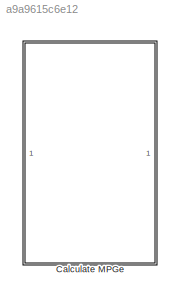
MODEL slx_a9a9615c6e12
KIND library
CONFIG AbsTol = auto
CONFIG EnableMultiTasking = off
CONFIG FixedStep = auto
CONFIG MaxStep = auto
CONFIG MinStep = auto
CONFIG RelTol = 1e-3
CONFIG SampleTimeConstraint = Unconstrained
CONFIG Solver = VariableStepAuto
CONFIG SolverName = VariableStepAuto
CONFIG StartTime = 0.0
CONFIG StopTime = 10.0
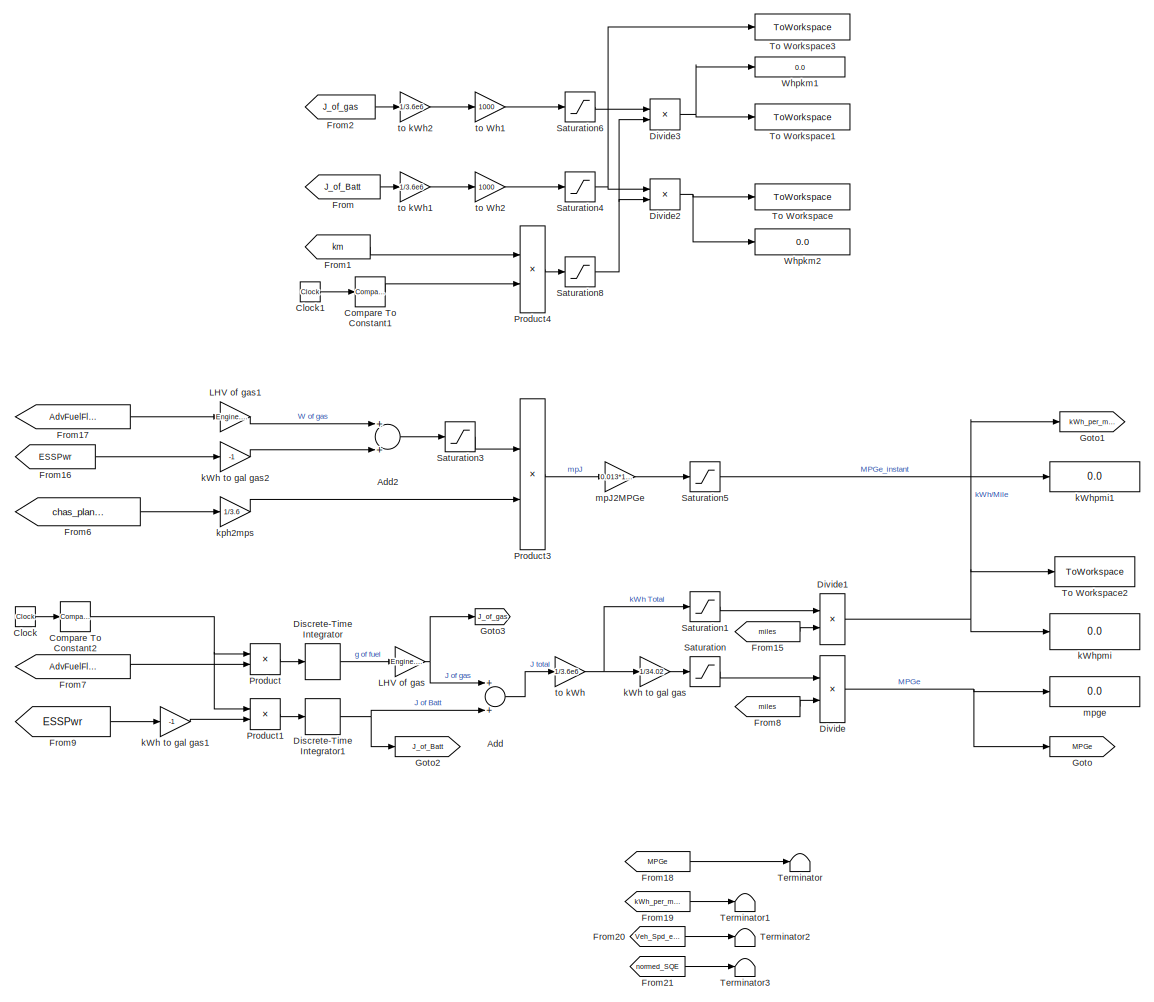
[diagram: Calculate MPGe - part 1/2, left side, full height]
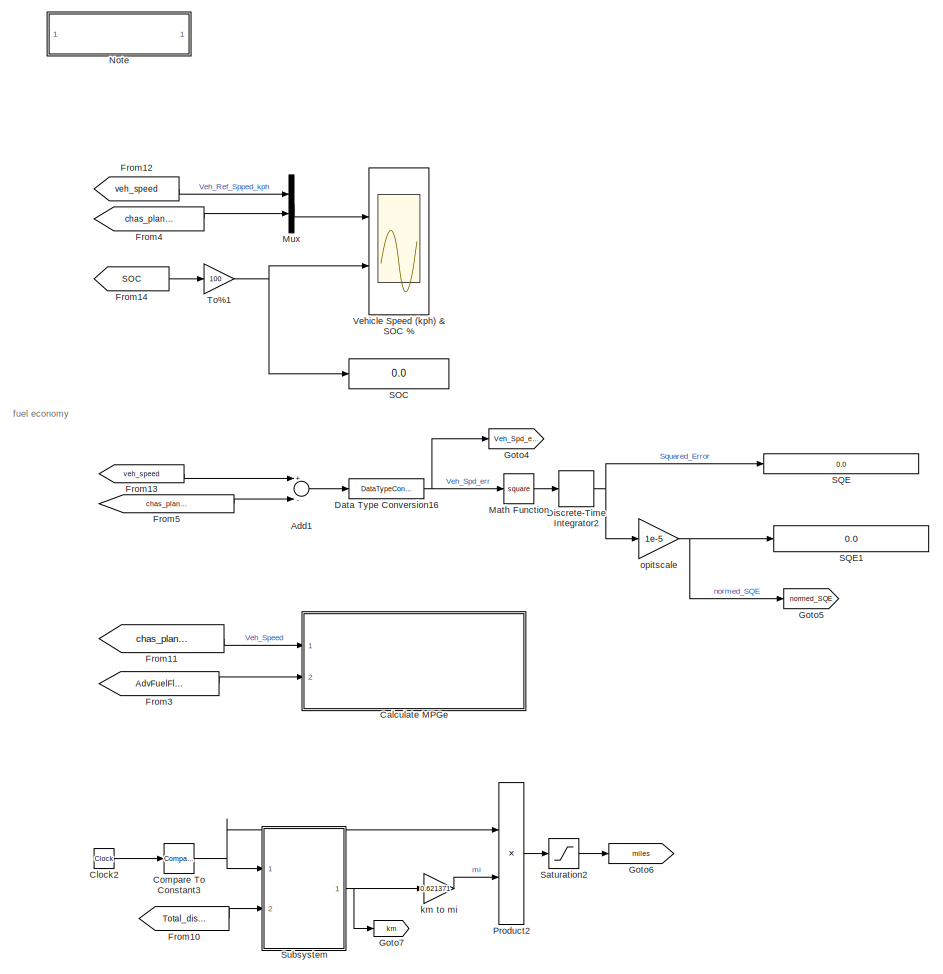
[diagram: Calculate MPGe - part 2/2, right side, full height]
BLOCK [SubSystem] Calculate MPGe
  Ports = []
  RequestExecContextInheritance = off
  Variant = off
BLOCK [Sum] Calculate MPGe/Add
  InputSameDT = off
  OutDataTypeStr = Inherit: Inherit via internal rule
  Ports = [2, 1]
  SaturateOnIntegerOverflow = off
BLOCK [Sum] Calculate MPGe/Add1
  InputSameDT = off
  Inputs = +-
  OutDataTypeStr = Inherit: Inherit via internal rule
  Ports = [2, 1]
  SaturateOnIntegerOverflow = off
BLOCK [Sum] Calculate MPGe/Add2
  InputSameDT = off
  OutDataTypeStr = Inherit: Inherit via internal rule
  Ports = [2, 1]
  SaturateOnIntegerOverflow = off
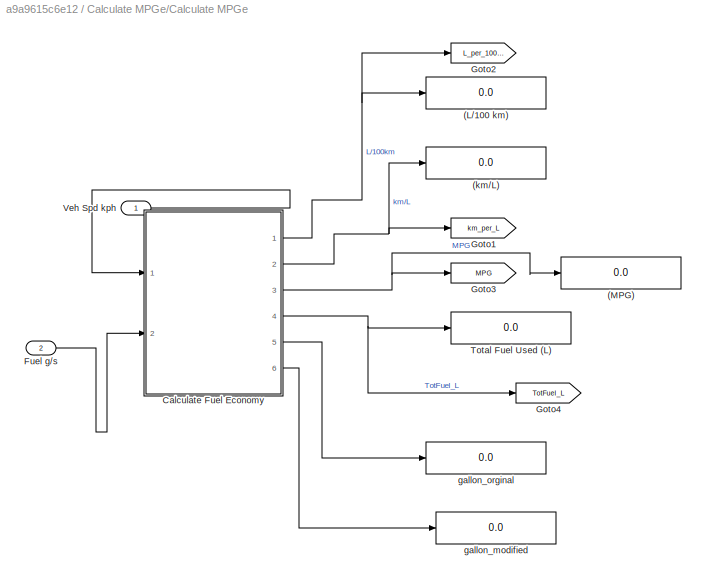
BLOCK [SubSystem] Calculate MPGe/Calculate MPGe
  Ports = [2]
  RequestExecContextInheritance = off
  Variant = off
BLOCK [Display] Calculate MPGe/Calculate MPGe/(L//100 km)
  Decimation = 1
  Ports = [1]
BLOCK [Display] Calculate MPGe/Calculate MPGe/(MPG)
  Decimation = 1
  Ports = [1]
BLOCK [Display] Calculate MPGe/Calculate MPGe/(km//L)
  Decimation = 1
  Ports = [1]
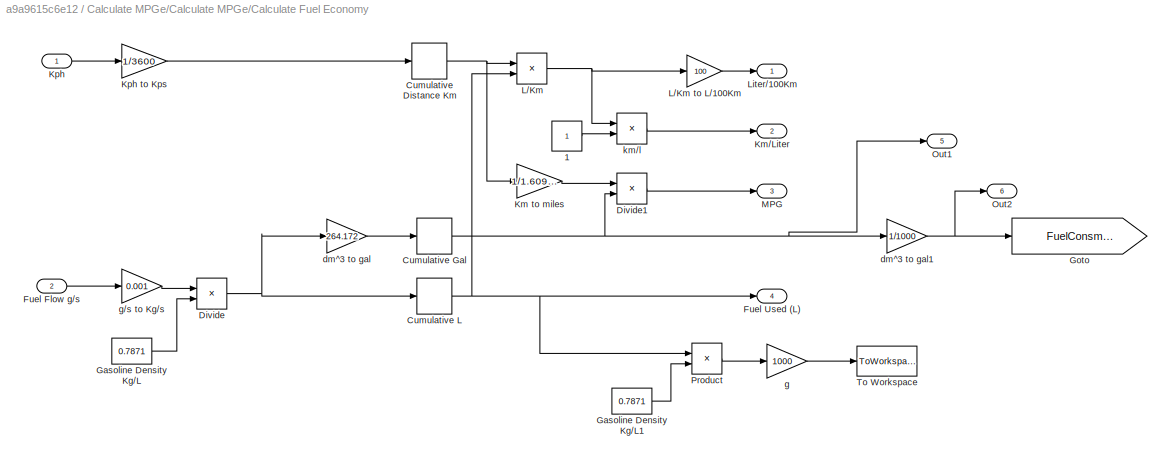
BLOCK [SubSystem] Calculate MPGe/Calculate MPGe/Calculate Fuel Economy
  Ports = [2, 6]
  RequestExecContextInheritance = off
  Variant = off
BLOCK [Constant] Calculate MPGe/Calculate MPGe/Calculate Fuel Economy/1
BLOCK [DiscreteIntegrator] Calculate MPGe/Calculate MPGe/Calculate Fuel Economy/Cumulative Distance Km
  ICPrevOutput = DiscIntNeverNeededParam
  ICPrevScaledInput = DiscIntNeverNeededParam
  InitialCondition = eps
  Ports = [1, 1]
  SampleTime = -1
BLOCK [DiscreteIntegrator] Calculate MPGe/Calculate MPGe/Calculate Fuel Economy/Cumulative Gal
  ICPrevOutput = DiscIntNeverNeededParam
  ICPrevScaledInput = DiscIntNeverNeededParam
  InitialCondition = eps
  Ports = [1, 1]
  SampleTime = -1
BLOCK [DiscreteIntegrator] Calculate MPGe/Calculate MPGe/Calculate Fuel Economy/Cumulative L
  ICPrevOutput = DiscIntNeverNeededParam
  ICPrevScaledInput = DiscIntNeverNeededParam
  InitialCondition = eps
  Ports = [1, 1]
  SampleTime = -1
BLOCK [Product] Calculate MPGe/Calculate MPGe/Calculate Fuel Economy/Divide
  InputSameDT = off
  Inputs = */
  OutDataTypeStr = Inherit: Inherit via internal rule
  Ports = [2, 1]
  RndMeth = Floor
  SaturateOnIntegerOverflow = off
BLOCK [Product] Calculate MPGe/Calculate MPGe/Calculate Fuel Economy/Divide1
  InputSameDT = off
  Inputs = */
  OutDataTypeStr = Inherit: Inherit via internal rule
  Ports = [2, 1]
  RndMeth = Floor
  SaturateOnIntegerOverflow = off
BLOCK [Inport] Calculate MPGe/Calculate MPGe/Calculate Fuel Economy/Fuel Flow g//s
  IconDisplay = Port number
  Port = 2
BLOCK [Outport] Calculate MPGe/Calculate MPGe/Calculate Fuel Economy/Fuel Used (L)
  IconDisplay = Port number
  Port = 4
BLOCK [Constant] Calculate MPGe/Calculate MPGe/Calculate Fuel Economy/Gasoline Density Kg//L
  Value = 0.7871
BLOCK [Constant] Calculate MPGe/Calculate MPGe/Calculate Fuel Economy/Gasoline Density Kg//L1
  Value = 0.7871
BLOCK [Goto] Calculate MPGe/Calculate MPGe/Calculate Fuel Economy/Goto
  GotoTag = FuelConsmp_gal
  TagVisibility = global
BLOCK [Gain] Calculate MPGe/Calculate MPGe/Calculate Fuel Economy/Km to miles
  Gain = 1/1.609344
  OutDataTypeStr = Inherit: Inherit via internal rule
  ParamDataTypeStr = Inherit: Inherit via internal rule
  SaturateOnIntegerOverflow = off
BLOCK [Outport] Calculate MPGe/Calculate MPGe/Calculate Fuel Economy/Km//Liter
  IconDisplay = Port number
  Port = 2
BLOCK [Inport] Calculate MPGe/Calculate MPGe/Calculate Fuel Economy/Kph
  IconDisplay = Port number
BLOCK [Gain] Calculate MPGe/Calculate MPGe/Calculate Fuel Economy/Kph to Kps
  Gain = 1/3600
  OutDataTypeStr = Inherit: Inherit via internal rule
  ParamDataTypeStr = Inherit: Inherit via internal rule
  SaturateOnIntegerOverflow = off
BLOCK [Product] Calculate MPGe/Calculate MPGe/Calculate Fuel Economy/L//Km
  InputSameDT = off
  Inputs = /*
  OutDataTypeStr = Inherit: Inherit via internal rule
  Ports = [2, 1]
  RndMeth = Floor
  SaturateOnIntegerOverflow = off
BLOCK [Gain] Calculate MPGe/Calculate MPGe/Calculate Fuel Economy/L//Km to L//100Km
  Gain = 100
  OutDataTypeStr = Inherit: Inherit via internal rule
  ParamDataTypeStr = Inherit: Inherit via internal rule
  SaturateOnIntegerOverflow = off
BLOCK [Outport] Calculate MPGe/Calculate MPGe/Calculate Fuel Economy/Liter//100Km
  IconDisplay = Port number
BLOCK [Outport] Calculate MPGe/Calculate MPGe/Calculate Fuel Economy/MPG
  IconDisplay = Port number
  Port = 3
BLOCK [Outport] Calculate MPGe/Calculate MPGe/Calculate Fuel Economy/Out1
  IconDisplay = Port number
  Port = 5
BLOCK [Outport] Calculate MPGe/Calculate MPGe/Calculate Fuel Economy/Out2
  IconDisplay = Port number
  Port = 6
BLOCK [Product] Calculate MPGe/Calculate MPGe/Calculate Fuel Economy/Product
  InputSameDT = off
  OutDataTypeStr = Inherit: Inherit via internal rule
  Ports = [2, 1]
  RndMeth = Floor
  SaturateOnIntegerOverflow = off
BLOCK [ToWorkspace] Calculate MPGe/Calculate MPGe/Calculate Fuel Economy/To Workspace
  FixptAsFi = on
  MaxDataPoints = inf
  Ports = [1]
  SampleTime = -1
  Save2DSignal = 3-D array (concatenate along third dimension)
  VariableName = Fuel_mass
BLOCK [Gain] Calculate MPGe/Calculate MPGe/Calculate Fuel Economy/dm^3 to gal
  Gain = 264.172
  OutDataTypeStr = Inherit: Inherit via internal rule
  ParamDataTypeStr = Inherit: Inherit via internal rule
  SaturateOnIntegerOverflow = off
BLOCK [Gain] Calculate MPGe/Calculate MPGe/Calculate Fuel Economy/dm^3 to gal1
  Gain = 1/1000
  OutDataTypeStr = Inherit: Inherit via internal rule
  ParamDataTypeStr = Inherit: Inherit via internal rule
  SaturateOnIntegerOverflow = off
BLOCK [Gain] Calculate MPGe/Calculate MPGe/Calculate Fuel Economy/g
  Gain = 1000
  OutDataTypeStr = Inherit: Inherit via internal rule
  ParamDataTypeStr = Inherit: Inherit via internal rule
  SaturateOnIntegerOverflow = off
BLOCK [Gain] Calculate MPGe/Calculate MPGe/Calculate Fuel Economy/g//s to Kg//s
  Gain = 0.001
  OutDataTypeStr = Inherit: Inherit via internal rule
  ParamDataTypeStr = Inherit: Inherit via internal rule
  SaturateOnIntegerOverflow = off
BLOCK [Product] Calculate MPGe/Calculate MPGe/Calculate Fuel Economy/km//l
  InputSameDT = off
  Inputs = /*
  OutDataTypeStr = Inherit: Inherit via internal rule
  Ports = [2, 1]
  RndMeth = Floor
  SaturateOnIntegerOverflow = off
BLOCK [Inport] Calculate MPGe/Calculate MPGe/Fuel g//s
  IconDisplay = Port number
  Port = 2
BLOCK [Goto] Calculate MPGe/Calculate MPGe/Goto1
  Commented = on
  GotoTag = km_per_L
  TagVisibility = global
BLOCK [Goto] Calculate MPGe/Calculate MPGe/Goto2
  Commented = on
  GotoTag = L_per_100km
  TagVisibility = global
BLOCK [Goto] Calculate MPGe/Calculate MPGe/Goto3
  Commented = on
  GotoTag = MPG
  TagVisibility = global
BLOCK [Goto] Calculate MPGe/Calculate MPGe/Goto4
  Commented = on
  GotoTag = TotFuel_L
  TagVisibility = global
BLOCK [Display] Calculate MPGe/Calculate MPGe/Total Fuel Used (L)
  Decimation = 1
  Ports = [1]
BLOCK [Inport] Calculate MPGe/Calculate MPGe/Veh Spd kph
  IconDisplay = Port number
BLOCK [Display] Calculate MPGe/Calculate MPGe/gallon_modified
  Decimation = 1
  Ports = [1]
BLOCK [Display] Calculate MPGe/Calculate MPGe/gallon_orginal
  Decimation = 1
  Ports = [1]
BLOCK [Clock] Calculate MPGe/Clock
BLOCK [Clock] Calculate MPGe/Clock1
BLOCK [Clock] Calculate MPGe/Clock2
BLOCK [Reference] Calculate MPGe/Compare To Constant1  REF=simulink/Logic and Bit
Operations/Compare
To Constant
  Ports = [1, 1]
  SourceBlock = simulink/Logic and Bit\nOperations/Compare\nTo Constant
  SourceProductBaseCode = SL
  SourceProductName = Simulink
  SourceType = Compare To Constant
BLOCK [Reference] Calculate MPGe/Compare To Constant2  REF=simulink/Logic and Bit
Operations/Compare
To Constant
  Ports = [1, 1]
  SourceBlock = simulink/Logic and Bit\nOperations/Compare\nTo Constant
  SourceProductBaseCode = SL
  SourceProductName = Simulink
  SourceType = Compare To Constant
BLOCK [Reference] Calculate MPGe/Compare To Constant3  REF=simulink/Logic and Bit
Operations/Compare
To Constant
  Ports = [1, 1]
  SourceBlock = simulink/Logic and Bit\nOperations/Compare\nTo Constant
  SourceProductBaseCode = SL
  SourceProductName = Simulink
  SourceType = Compare To Constant
BLOCK [DataTypeConversion] Calculate MPGe/Data Type Conversion16
  OutDataTypeStr = double
  RndMeth = Floor
  SaturateOnIntegerOverflow = off
BLOCK [DiscreteIntegrator] Calculate MPGe/Discrete-Time Integrator
  ICPrevOutput = DiscIntNeverNeededParam
  ICPrevScaledInput = DiscIntNeverNeededParam
  Ports = [1, 1]
  SampleTime = -1
BLOCK [DiscreteIntegrator] Calculate MPGe/Discrete-Time Integrator1
  ICPrevOutput = DiscIntNeverNeededParam
  ICPrevScaledInput = DiscIntNeverNeededParam
  Ports = [1, 1]
  SampleTime = -1
BLOCK [DiscreteIntegrator] Calculate MPGe/Discrete-Time Integrator2
  ICPrevOutput = DiscIntNeverNeededParam
  ICPrevScaledInput = DiscIntNeverNeededParam
  Ports = [1, 1]
  SampleTime = -1
BLOCK [Product] Calculate MPGe/Divide
  InputSameDT = off
  Inputs = /*
  OutDataTypeStr = Inherit: Inherit via internal rule
  Ports = [2, 1]
  RndMeth = Floor
  SaturateOnIntegerOverflow = off
BLOCK [Product] Calculate MPGe/Divide1
  InputSameDT = off
  Inputs = */
  OutDataTypeStr = Inherit: Inherit via internal rule
  Ports = [2, 1]
  RndMeth = Floor
  SaturateOnIntegerOverflow = off
BLOCK [Product] Calculate MPGe/Divide2
  InputSameDT = off
  Inputs = */
  OutDataTypeStr = Inherit: Inherit via internal rule
  Ports = [2, 1]
  RndMeth = Floor
  SaturateOnIntegerOverflow = off
BLOCK [Product] Calculate MPGe/Divide3
  InputSameDT = off
  Inputs = */
  OutDataTypeStr = Inherit: Inherit via internal rule
  Ports = [2, 1]
  RndMeth = Floor
  SaturateOnIntegerOverflow = off
BLOCK [From] Calculate MPGe/From
  GotoTag = J_of_Batt
BLOCK [From] Calculate MPGe/From1
  GotoTag = km
BLOCK [From] Calculate MPGe/From10
  GotoTag = Total_dis_km
  TagVisibility = global
BLOCK [From] Calculate MPGe/From11
  GotoTag = chas_plant_lin_spd_out
  TagVisibility = global
BLOCK [From] Calculate MPGe/From12
  GotoTag = veh_speed
  TagVisibility = global
BLOCK [From] Calculate MPGe/From13
  GotoTag = veh_speed
  TagVisibility = global
BLOCK [From] Calculate MPGe/From14
  GotoTag = SOC
  TagVisibility = global
BLOCK [From] Calculate MPGe/From15
  GotoTag = miles
BLOCK [From] Calculate MPGe/From16
  GotoTag = ESSPwr
  TagVisibility = global
BLOCK [From] Calculate MPGe/From17
  GotoTag = AdvFuelFlowEst
  TagVisibility = global
BLOCK [From] Calculate MPGe/From18
  GotoTag = MPGe
  TagVisibility = global
BLOCK [From] Calculate MPGe/From19
  GotoTag = kWh_per_mile
  TagVisibility = global
BLOCK [From] Calculate MPGe/From2
  GotoTag = J_of_gas
BLOCK [From] Calculate MPGe/From20
  GotoTag = Veh_Spd_err
  TagVisibility = global
BLOCK [From] Calculate MPGe/From21
  GotoTag = normed_SQE
  TagVisibility = global
BLOCK [From] Calculate MPGe/From3
  GotoTag = AdvFuelFlowEst
  TagVisibility = global
BLOCK [From] Calculate MPGe/From4
  GotoTag = chas_plant_lin_spd_out
  TagVisibility = global
BLOCK [From] Calculate MPGe/From5
  GotoTag = chas_plant_lin_spd_out
  TagVisibility = global
BLOCK [From] Calculate MPGe/From6
  GotoTag = chas_plant_lin_spd_out
  TagVisibility = global
BLOCK [From] Calculate MPGe/From7
  GotoTag = AdvFuelFlowEst
  TagVisibility = global
BLOCK [From] Calculate MPGe/From8
  GotoTag = miles
BLOCK [From] Calculate MPGe/From9
  GotoTag = ESSPwr
  TagVisibility = global
BLOCK [Goto] Calculate MPGe/Goto
  GotoTag = MPGe
  TagVisibility = global
BLOCK [Goto] Calculate MPGe/Goto1
  GotoTag = kWh_per_mile
  TagVisibility = global
BLOCK [Goto] Calculate MPGe/Goto2
  GotoTag = J_of_Batt
BLOCK [Goto] Calculate MPGe/Goto3
  GotoTag = J_of_gas
BLOCK [Goto] Calculate MPGe/Goto4
  GotoTag = Veh_Spd_err
  TagVisibility = global
BLOCK [Goto] Calculate MPGe/Goto5
  GotoTag = normed_SQE
  TagVisibility = global
BLOCK [Goto] Calculate MPGe/Goto6
  GotoTag = miles
BLOCK [Goto] Calculate MPGe/Goto7
  GotoTag = km
BLOCK [Gain] Calculate MPGe/LHV of gas
  Gain = Engine.Fuel.Lower_Heating_Value/1000
  OutDataTypeStr = Inherit: Inherit via internal rule
  ParamDataTypeStr = Inherit: Inherit via internal rule
  SaturateOnIntegerOverflow = off
BLOCK [Gain] Calculate MPGe/LHV of gas1
  Gain = Engine.Fuel.Lower_Heating_Value/1000
  OutDataTypeStr = Inherit: Inherit via internal rule
  ParamDataTypeStr = Inherit: Inherit via internal rule
  SaturateOnIntegerOverflow = off
BLOCK [Math] Calculate MPGe/Math Function
  Operator = square
  Ports = [1, 1]
BLOCK [Mux] Calculate MPGe/Mux
  DisplayOption = bar
  Inputs = 2
  Ports = [2, 1]
BLOCK [SubSystem] Calculate MPGe/Note
  Ports = []
  RequestExecContextInheritance = off
  Variant = off
BLOCK [Product] Calculate MPGe/Product
  InputSameDT = off
  OutDataTypeStr = Inherit: Inherit via internal rule
  Ports = [2, 1]
  RndMeth = Floor
  SaturateOnIntegerOverflow = off
BLOCK [Product] Calculate MPGe/Product1
  InputSameDT = off
  OutDataTypeStr = Inherit: Inherit via internal rule
  Ports = [2, 1]
  RndMeth = Floor
  SaturateOnIntegerOverflow = off
BLOCK [Product] Calculate MPGe/Product2
  InputSameDT = off
  OutDataTypeStr = Inherit: Inherit via internal rule
  Ports = [2, 1]
  RndMeth = Floor
  SaturateOnIntegerOverflow = off
BLOCK [Product] Calculate MPGe/Product3
  InputSameDT = off
  Inputs = /*
  OutDataTypeStr = Inherit: Inherit via internal rule
  Ports = [2, 1]
  RndMeth = Floor
  SaturateOnIntegerOverflow = off
BLOCK [Product] Calculate MPGe/Product4
  InputSameDT = off
  OutDataTypeStr = Inherit: Inherit via internal rule
  Ports = [2, 1]
  RndMeth = Floor
  SaturateOnIntegerOverflow = off
BLOCK [Display] Calculate MPGe/SOC
  Decimation = 1
  Format = long
  Ports = [1]
BLOCK [Display] Calculate MPGe/SQE
  Decimation = 1
  Ports = [1]
BLOCK [Display] Calculate MPGe/SQE1
  Decimation = 1
  Format = long
  Ports = [1]
BLOCK [Saturate] Calculate MPGe/Saturation
  InputPortMap = u0
  LowerLimit = 1e-6
  Ports = [1, 1]
  UpperLimit = inf
BLOCK [Saturate] Calculate MPGe/Saturation1
  InputPortMap = u0
  LowerLimit = 1e-6
  Ports = [1, 1]
  UpperLimit = inf
BLOCK [Saturate] Calculate MPGe/Saturation2
  InputPortMap = u0
  LowerLimit = 1e-6
  Ports = [1, 1]
  UpperLimit = inf
BLOCK [Saturate] Calculate MPGe/Saturation3
  InputPortMap = u0
  LowerLimit = 1e-6
  Ports = [1, 1]
  UpperLimit = inf
BLOCK [Saturate] Calculate MPGe/Saturation4
  InputPortMap = u0
  LowerLimit = 1e-6
  Ports = [1, 1]
  UpperLimit = inf
BLOCK [Saturate] Calculate MPGe/Saturation5
  InputPortMap = u0
  LowerLimit = 1e-6
  Ports = [1, 1]
  UpperLimit = 80
BLOCK [Saturate] Calculate MPGe/Saturation6
  InputPortMap = u0
  LowerLimit = 1e-6
  Ports = [1, 1]
  UpperLimit = inf
BLOCK [Saturate] Calculate MPGe/Saturation8
  InputPortMap = u0
  LowerLimit = 1e-6
  Ports = [1, 1]
  UpperLimit = inf
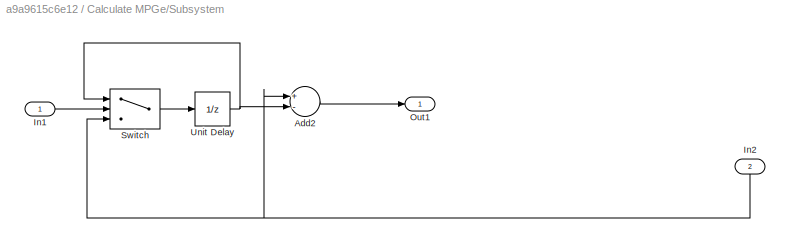
BLOCK [SubSystem] Calculate MPGe/Subsystem
  Ports = [2, 1]
  RequestExecContextInheritance = off
  Variant = off
BLOCK [Sum] Calculate MPGe/Subsystem/Add2
  InputSameDT = off
  Inputs = +-
  OutDataTypeStr = Inherit: Inherit via internal rule
  Ports = [2, 1]
  SaturateOnIntegerOverflow = off
BLOCK [Inport] Calculate MPGe/Subsystem/In1
  IconDisplay = Port number
BLOCK [Inport] Calculate MPGe/Subsystem/In2
  IconDisplay = Port number
  Port = 2
BLOCK [Outport] Calculate MPGe/Subsystem/Out1
  IconDisplay = Port number
BLOCK [Switch] Calculate MPGe/Subsystem/Switch
  Criteria = u2 > Threshold
  InputSameDT = off
  SaturateOnIntegerOverflow = off
BLOCK [UnitDelay] Calculate MPGe/Subsystem/Unit Delay
  InputProcessing = Elements as channels (sample based)
  SampleTime = -1
BLOCK [Terminator] Calculate MPGe/Terminator
BLOCK [Terminator] Calculate MPGe/Terminator1
BLOCK [Terminator] Calculate MPGe/Terminator2
BLOCK [Terminator] Calculate MPGe/Terminator3
BLOCK [ToWorkspace] Calculate MPGe/To Workspace
  FixptAsFi = on
  MaxDataPoints = inf
  Ports = [1]
  SampleTime = -1
  Save2DSignal = 3-D array (concatenate along third dimension)
  VariableName = WhPkm_batt
BLOCK [ToWorkspace] Calculate MPGe/To Workspace1
  FixptAsFi = on
  MaxDataPoints = inf
  Ports = [1]
  SampleTime = -1
  Save2DSignal = 3-D array (concatenate along third dimension)
  VariableName = WhPkm_Fuel
BLOCK [ToWorkspace] Calculate MPGe/To Workspace2
  FixptAsFi = on
  MaxDataPoints = inf
  Ports = [1]
  SampleTime = -1
  Save2DSignal = 3-D array (concatenate along third dimension)
  VariableName = kWhPmi_total
BLOCK [ToWorkspace] Calculate MPGe/To Workspace3
  FixptAsFi = on
  MaxDataPoints = inf
  Ports = [1]
  SampleTime = -1
  Save2DSignal = 3-D array (concatenate along third dimension)
  VariableName = Wh_batt
BLOCK [Gain] Calculate MPGe/To%1
  Gain = 100
  OutDataTypeStr = Inherit: Inherit via internal rule
  ParamDataTypeStr = Inherit: Inherit via internal rule
  SaturateOnIntegerOverflow = off
BLOCK [Scope] Calculate MPGe/Vehicle Speed (kph) & SOC %
  NumInputPorts = 2
  Ports = [2]
  ScopeSpecificationString = Simulink.scopes.TimeScopeBlockCfg('CurrentConfiguration', extmgr.ConfigurationSet(extmgr.Configuration('Core','General UI',true,'FigureColor',[1 1 1]),extmgr.Configuration('Core','Source UI',true),extmgr.Configuration('Sources','WiredSimulink',true,'DataLoggingVariableName','ScopeData2','DataLoggingSaveFormat','StructureWithTime','DataLoggingDecimation','1','DataLoggingDecimateData',true),extmgr.C...<+4073ch>
BLOCK [Display] Calculate MPGe/Whpkm1
  Decimation = 1
  Ports = [1]
BLOCK [Display] Calculate MPGe/Whpkm2
  Decimation = 1
  Ports = [1]
BLOCK [Gain] Calculate MPGe/kWh to gal gas
  Gain = 1/34.02
  OutDataTypeStr = Inherit: Inherit via internal rule
  ParamDataTypeStr = Inherit: Inherit via internal rule
  SaturateOnIntegerOverflow = off
BLOCK [Gain] Calculate MPGe/kWh to gal gas1
  Gain = -1
  OutDataTypeStr = Inherit: Inherit via internal rule
  ParamDataTypeStr = Inherit: Inherit via internal rule
  SaturateOnIntegerOverflow = off
BLOCK [Gain] Calculate MPGe/kWh to gal gas2
  Gain = -1
  OutDataTypeStr = Inherit: Inherit via internal rule
  ParamDataTypeStr = Inherit: Inherit via internal rule
  SaturateOnIntegerOverflow = off
BLOCK [Display] Calculate MPGe/kWhpmi
  Decimation = 1
  Ports = [1]
BLOCK [Display] Calculate MPGe/kWhpmi1
  Decimation = 1
  Ports = [1]
BLOCK [Gain] Calculate MPGe/km to mi
  Gain = 0.621371
  OutDataTypeStr = Inherit: Inherit via internal rule
  ParamDataTypeStr = Inherit: Inherit via internal rule
  SaturateOnIntegerOverflow = off
BLOCK [Gain] Calculate MPGe/kph2mps
  Gain = 1/3.6
  OutDataTypeStr = Inherit: Inherit via internal rule
  ParamDataTypeStr = Inherit: Inherit via internal rule
  SaturateOnIntegerOverflow = off
BLOCK [Gain] Calculate MPGe/mpJ2MPGe
  Gain = 0.013*1e6
  OutDataTypeStr = Inherit: Inherit via internal rule
  ParamDataTypeStr = Inherit: Inherit via internal rule
  SaturateOnIntegerOverflow = off
BLOCK [Display] Calculate MPGe/mpge
  Decimation = 1
  Format = long
  Ports = [1]
BLOCK [Gain] Calculate MPGe/opitscale
  Gain = 1e-5
  OutDataTypeStr = Inherit: Inherit via internal rule
  ParamDataTypeStr = Inherit: Inherit via internal rule
  SaturateOnIntegerOverflow = off
BLOCK [Gain] Calculate MPGe/to Wh1
  Gain = 1000
  OutDataTypeStr = Inherit: Inherit via internal rule
  ParamDataTypeStr = Inherit: Inherit via internal rule
  SaturateOnIntegerOverflow = off
BLOCK [Gain] Calculate MPGe/to Wh2
  Gain = 1000
  OutDataTypeStr = Inherit: Inherit via internal rule
  ParamDataTypeStr = Inherit: Inherit via internal rule
  SaturateOnIntegerOverflow = off
BLOCK [Gain] Calculate MPGe/to kWh
  Gain = 1/3.6e6
  OutDataTypeStr = Inherit: Inherit via internal rule
  ParamDataTypeStr = Inherit: Inherit via internal rule
  SaturateOnIntegerOverflow = off
BLOCK [Gain] Calculate MPGe/to kWh1
  Gain = 1/3.6e6
  OutDataTypeStr = Inherit: Inherit via internal rule
  ParamDataTypeStr = Inherit: Inherit via internal rule
  SaturateOnIntegerOverflow = off
BLOCK [Gain] Calculate MPGe/to kWh2
  Gain = 1/3.6e6
  OutDataTypeStr = Inherit: Inherit via internal rule
  ParamDataTypeStr = Inherit: Inherit via internal rule
  SaturateOnIntegerOverflow = off
ANNOTATION Calculate MPGe: fuel economy
ANNOTATION Calculate MPGe/Note: Note that this is calculating the instantaneous MPGe over time (includes fuel and battery energy used). You should also look at the SOC or energy of the Battery at the end of the cycle, and see what the delta is between the start/end. If more/less energy is in the Battery at the end, you should determine how you want to account for this difference. For example, if you consider Plug-In capability t...<+296ch>
LINE Calculate MPGe/Add1:1 -> Calculate MPGe/Data Type Conversion16:1
LINE Calculate MPGe/Add2:1 -> Calculate MPGe/Saturation3:1
LINE Calculate MPGe/Add:1 -> Calculate MPGe/to kWh:1
LINE Calculate MPGe/Calculate MPGe/Calculate Fuel Economy/1:1 -> Calculate MPGe/Calculate MPGe/Calculate Fuel Economy/km//l:2
NET Calculate MPGe/Calculate MPGe/Calculate Fuel Economy/Cumulative Distance Km:1 -> Calculate MPGe/Calculate MPGe/Calculate Fuel Economy/Km to miles:1, Calculate MPGe/Calculate MPGe/Calculate Fuel Economy/L//Km:1
NET Calculate MPGe/Calculate MPGe/Calculate Fuel Economy/Cumulative Gal:1 -> Calculate MPGe/Calculate MPGe/Calculate Fuel Economy/Divide1:2, Calculate MPGe/Calculate MPGe/Calculate Fuel Economy/Out1:1, Calculate MPGe/Calculate MPGe/Calculate Fuel Economy/dm^3 to gal1:1
NET Calculate MPGe/Calculate MPGe/Calculate Fuel Economy/Cumulative L:1 -> Calculate MPGe/Calculate MPGe/Calculate Fuel Economy/Fuel Used (L):1, Calculate MPGe/Calculate MPGe/Calculate Fuel Economy/L//Km:2, Calculate MPGe/Calculate MPGe/Calculate Fuel Economy/Product:1
LINE Calculate MPGe/Calculate MPGe/Calculate Fuel Economy/Divide1:1 -> Calculate MPGe/Calculate MPGe/Calculate Fuel Economy/MPG:1
NET Calculate MPGe/Calculate MPGe/Calculate Fuel Economy/Divide:1 -> Calculate MPGe/Calculate MPGe/Calculate Fuel Economy/Cumulative L:1, Calculate MPGe/Calculate MPGe/Calculate Fuel Economy/dm^3 to gal:1
LINE Calculate MPGe/Calculate MPGe/Calculate Fuel Economy/Fuel Flow g//s:1 -> Calculate MPGe/Calculate MPGe/Calculate Fuel Economy/g//s to Kg//s:1
LINE Calculate MPGe/Calculate MPGe/Calculate Fuel Economy/Gasoline Density Kg//L1:1 -> Calculate MPGe/Calculate MPGe/Calculate Fuel Economy/Product:2
LINE Calculate MPGe/Calculate MPGe/Calculate Fuel Economy/Gasoline Density Kg//L:1 -> Calculate MPGe/Calculate MPGe/Calculate Fuel Economy/Divide:2
LINE Calculate MPGe/Calculate MPGe/Calculate Fuel Economy/Km to miles:1 -> Calculate MPGe/Calculate MPGe/Calculate Fuel Economy/Divide1:1
LINE Calculate MPGe/Calculate MPGe/Calculate Fuel Economy/Kph to Kps:1 -> Calculate MPGe/Calculate MPGe/Calculate Fuel Economy/Cumulative Distance Km:1
LINE Calculate MPGe/Calculate MPGe/Calculate Fuel Economy/Kph:1 -> Calculate MPGe/Calculate MPGe/Calculate Fuel Economy/Kph to Kps:1
LINE Calculate MPGe/Calculate MPGe/Calculate Fuel Economy/L//Km to L//100Km:1 -> Calculate MPGe/Calculate MPGe/Calculate Fuel Economy/Liter//100Km:1
NET Calculate MPGe/Calculate MPGe/Calculate Fuel Economy/L//Km:1 -> Calculate MPGe/Calculate MPGe/Calculate Fuel Economy/L//Km to L//100Km:1, Calculate MPGe/Calculate MPGe/Calculate Fuel Economy/km//l:1
LINE Calculate MPGe/Calculate MPGe/Calculate Fuel Economy/Product:1 -> Calculate MPGe/Calculate MPGe/Calculate Fuel Economy/g:1
NET Calculate MPGe/Calculate MPGe/Calculate Fuel Economy/dm^3 to gal1:1 -> Calculate MPGe/Calculate MPGe/Calculate Fuel Economy/Goto:1, Calculate MPGe/Calculate MPGe/Calculate Fuel Economy/Out2:1
LINE Calculate MPGe/Calculate MPGe/Calculate Fuel Economy/dm^3 to gal:1 -> Calculate MPGe/Calculate MPGe/Calculate Fuel Economy/Cumulative Gal:1
LINE Calculate MPGe/Calculate MPGe/Calculate Fuel Economy/g//s to Kg//s:1 -> Calculate MPGe/Calculate MPGe/Calculate Fuel Economy/Divide:1
LINE Calculate MPGe/Calculate MPGe/Calculate Fuel Economy/g:1 -> Calculate MPGe/Calculate MPGe/Calculate Fuel Economy/To Workspace:1
LINE Calculate MPGe/Calculate MPGe/Calculate Fuel Economy/km//l:1 -> Calculate MPGe/Calculate MPGe/Calculate Fuel Economy/Km//Liter:1
NET Calculate MPGe/Calculate MPGe/Calculate Fuel Economy:1 -> Calculate MPGe/Calculate MPGe/(L//100 km):1, Calculate MPGe/Calculate MPGe/Goto2:1
NET Calculate MPGe/Calculate MPGe/Calculate Fuel Economy:2 -> Calculate MPGe/Calculate MPGe/(km//L):1, Calculate MPGe/Calculate MPGe/Goto1:1
NET Calculate MPGe/Calculate MPGe/Calculate Fuel Economy:3 -> Calculate MPGe/Calculate MPGe/(MPG):1, Calculate MPGe/Calculate MPGe/Goto3:1
NET Calculate MPGe/Calculate MPGe/Calculate Fuel Economy:4 -> Calculate MPGe/Calculate MPGe/Goto4:1, Calculate MPGe/Calculate MPGe/Total Fuel Used (L):1
LINE Calculate MPGe/Calculate MPGe/Calculate Fuel Economy:5 -> Calculate MPGe/Calculate MPGe/gallon_orginal:1
LINE Calculate MPGe/Calculate MPGe/Calculate Fuel Economy:6 -> Calculate MPGe/Calculate MPGe/gallon_modified:1
LINE Calculate MPGe/Calculate MPGe/Fuel g//s:1 -> Calculate MPGe/Calculate MPGe/Calculate Fuel Economy:2
LINE Calculate MPGe/Calculate MPGe/Veh Spd kph:1 -> Calculate MPGe/Calculate MPGe/Calculate Fuel Economy:1
LINE Calculate MPGe/Clock1:1 -> Calculate MPGe/Compare To Constant1:1
LINE Calculate MPGe/Clock2:1 -> Calculate MPGe/Compare To Constant3:1
LINE Calculate MPGe/Clock:1 -> Calculate MPGe/Compare To Constant2:1
LINE Calculate MPGe/Compare To Constant1:1 -> Calculate MPGe/Product4:2
NET Calculate MPGe/Compare To Constant2:1 -> Calculate MPGe/Product1:1, Calculate MPGe/Product:1
NET Calculate MPGe/Compare To Constant3:1 -> Calculate MPGe/Product2:1, Calculate MPGe/Subsystem:1
NET Calculate MPGe/Data Type Conversion16:1 -> Calculate MPGe/Goto4:1, Calculate MPGe/Math Function:1
NET Calculate MPGe/Discrete-Time Integrator1:1 -> Calculate MPGe/Add:2, Calculate MPGe/Goto2:1
NET Calculate MPGe/Discrete-Time Integrator2:1 -> Calculate MPGe/SQE:1, Calculate MPGe/opitscale:1
LINE Calculate MPGe/Discrete-Time Integrator:1 -> Calculate MPGe/LHV of gas:1
NET Calculate MPGe/Divide1:1 -> Calculate MPGe/Goto1:1, Calculate MPGe/To Workspace2:1, Calculate MPGe/kWhpmi:1
NET Calculate MPGe/Divide2:1 -> Calculate MPGe/To Workspace:1, Calculate MPGe/Whpkm2:1
NET Calculate MPGe/Divide3:1 -> Calculate MPGe/To Workspace1:1, Calculate MPGe/Whpkm1:1
NET Calculate MPGe/Divide:1 -> Calculate MPGe/Goto:1, Calculate MPGe/mpge:1
LINE Calculate MPGe/From10:1 -> Calculate MPGe/Subsystem:2
LINE Calculate MPGe/From11:1 -> Calculate MPGe/Calculate MPGe:1
LINE Calculate MPGe/From12:1 -> Calculate MPGe/Mux:1
LINE Calculate MPGe/From13:1 -> Calculate MPGe/Add1:1
LINE Calculate MPGe/From14:1 -> Calculate MPGe/To%1:1
LINE Calculate MPGe/From15:1 -> Calculate MPGe/Divide1:2
LINE Calculate MPGe/From16:1 -> Calculate MPGe/kWh to gal gas2:1
LINE Calculate MPGe/From17:1 -> Calculate MPGe/LHV of gas1:1
LINE Calculate MPGe/From18:1 -> Calculate MPGe/Terminator:1
LINE Calculate MPGe/From19:1 -> Calculate MPGe/Terminator1:1
LINE Calculate MPGe/From1:1 -> Calculate MPGe/Product4:1
LINE Calculate MPGe/From20:1 -> Calculate MPGe/Terminator2:1
LINE Calculate MPGe/From21:1 -> Calculate MPGe/Terminator3:1
LINE Calculate MPGe/From2:1 -> Calculate MPGe/to kWh2:1
LINE Calculate MPGe/From3:1 -> Calculate MPGe/Calculate MPGe:2
LINE Calculate MPGe/From4:1 -> Calculate MPGe/Mux:2
LINE Calculate MPGe/From5:1 -> Calculate MPGe/Add1:2
LINE Calculate MPGe/From6:1 -> Calculate MPGe/kph2mps:1
LINE Calculate MPGe/From7:1 -> Calculate MPGe/Product:2
LINE Calculate MPGe/From8:1 -> Calculate MPGe/Divide:2
LINE Calculate MPGe/From9:1 -> Calculate MPGe/kWh to gal gas1:1
LINE Calculate MPGe/From:1 -> Calculate MPGe/to kWh1:1
LINE Calculate MPGe/LHV of gas1:1 -> Calculate MPGe/Add2:1
NET Calculate MPGe/LHV of gas:1 -> Calculate MPGe/Add:1, Calculate MPGe/Goto3:1
LINE Calculate MPGe/Math Function:1 -> Calculate MPGe/Discrete-Time Integrator2:1
LINE Calculate MPGe/Mux:1 -> Calculate MPGe/Vehicle Speed (kph) & SOC %:1
LINE Calculate MPGe/Product1:1 -> Calculate MPGe/Discrete-Time Integrator1:1
LINE Calculate MPGe/Product2:1 -> Calculate MPGe/Saturation2:1
LINE Calculate MPGe/Product3:1 -> Calculate MPGe/mpJ2MPGe:1
LINE Calculate MPGe/Product4:1 -> Calculate MPGe/Saturation8:1
LINE Calculate MPGe/Product:1 -> Calculate MPGe/Discrete-Time Integrator:1
LINE Calculate MPGe/Saturation1:1 -> Calculate MPGe/Divide1:1
LINE Calculate MPGe/Saturation2:1 -> Calculate MPGe/Goto6:1
LINE Calculate MPGe/Saturation3:1 -> Calculate MPGe/Product3:1
NET Calculate MPGe/Saturation4:1 -> Calculate MPGe/Divide2:1, Calculate MPGe/To Workspace3:1
LINE Calculate MPGe/Saturation5:1 -> Calculate MPGe/kWhpmi1:1
LINE Calculate MPGe/Saturation6:1 -> Calculate MPGe/Divide3:1
NET Calculate MPGe/Saturation8:1 -> Calculate MPGe/Divide2:2, Calculate MPGe/Divide3:2
LINE Calculate MPGe/Saturation:1 -> Calculate MPGe/Divide:1
LINE Calculate MPGe/Subsystem/Add2:1 -> Calculate MPGe/Subsystem/Out1:1
LINE Calculate MPGe/Subsystem/In1:1 -> Calculate MPGe/Subsystem/Switch:2
NET Calculate MPGe/Subsystem/In2:1 -> Calculate MPGe/Subsystem/Add2:1, Calculate MPGe/Subsystem/Switch:3
LINE Calculate MPGe/Subsystem/Switch:1 -> Calculate MPGe/Subsystem/Unit Delay:1
NET Calculate MPGe/Subsystem/Unit Delay:1 -> Calculate MPGe/Subsystem/Add2:2, Calculate MPGe/Subsystem/Switch:1
NET Calculate MPGe/Subsystem:1 -> Calculate MPGe/Goto7:1, Calculate MPGe/km to mi:1
NET Calculate MPGe/To%1:1 -> Calculate MPGe/SOC:1, Calculate MPGe/Vehicle Speed (kph) & SOC %:2
LINE Calculate MPGe/kWh to gal gas1:1 -> Calculate MPGe/Product1:2
LINE Calculate MPGe/kWh to gal gas2:1 -> Calculate MPGe/Add2:2
LINE Calculate MPGe/kWh to gal gas:1 -> Calculate MPGe/Saturation:1
LINE Calculate MPGe/km to mi:1 -> Calculate MPGe/Product2:2
LINE Calculate MPGe/kph2mps:1 -> Calculate MPGe/Product3:2
LINE Calculate MPGe/mpJ2MPGe:1 -> Calculate MPGe/Saturation5:1
NET Calculate MPGe/opitscale:1 -> Calculate MPGe/Goto5:1, Calculate MPGe/SQE1:1
LINE Calculate MPGe/to Wh1:1 -> Calculate MPGe/Saturation6:1
LINE Calculate MPGe/to Wh2:1 -> Calculate MPGe/Saturation4:1
LINE Calculate MPGe/to kWh1:1 -> Calculate MPGe/to Wh2:1
LINE Calculate MPGe/to kWh2:1 -> Calculate MPGe/to Wh1:1
NET Calculate MPGe/to kWh:1 -> Calculate MPGe/Saturation1:1, Calculate MPGe/kWh to gal gas:1
note: NET lines group one-source signal fan-out (src -> all destinations, sorted); 1:1 wires keep LINE
